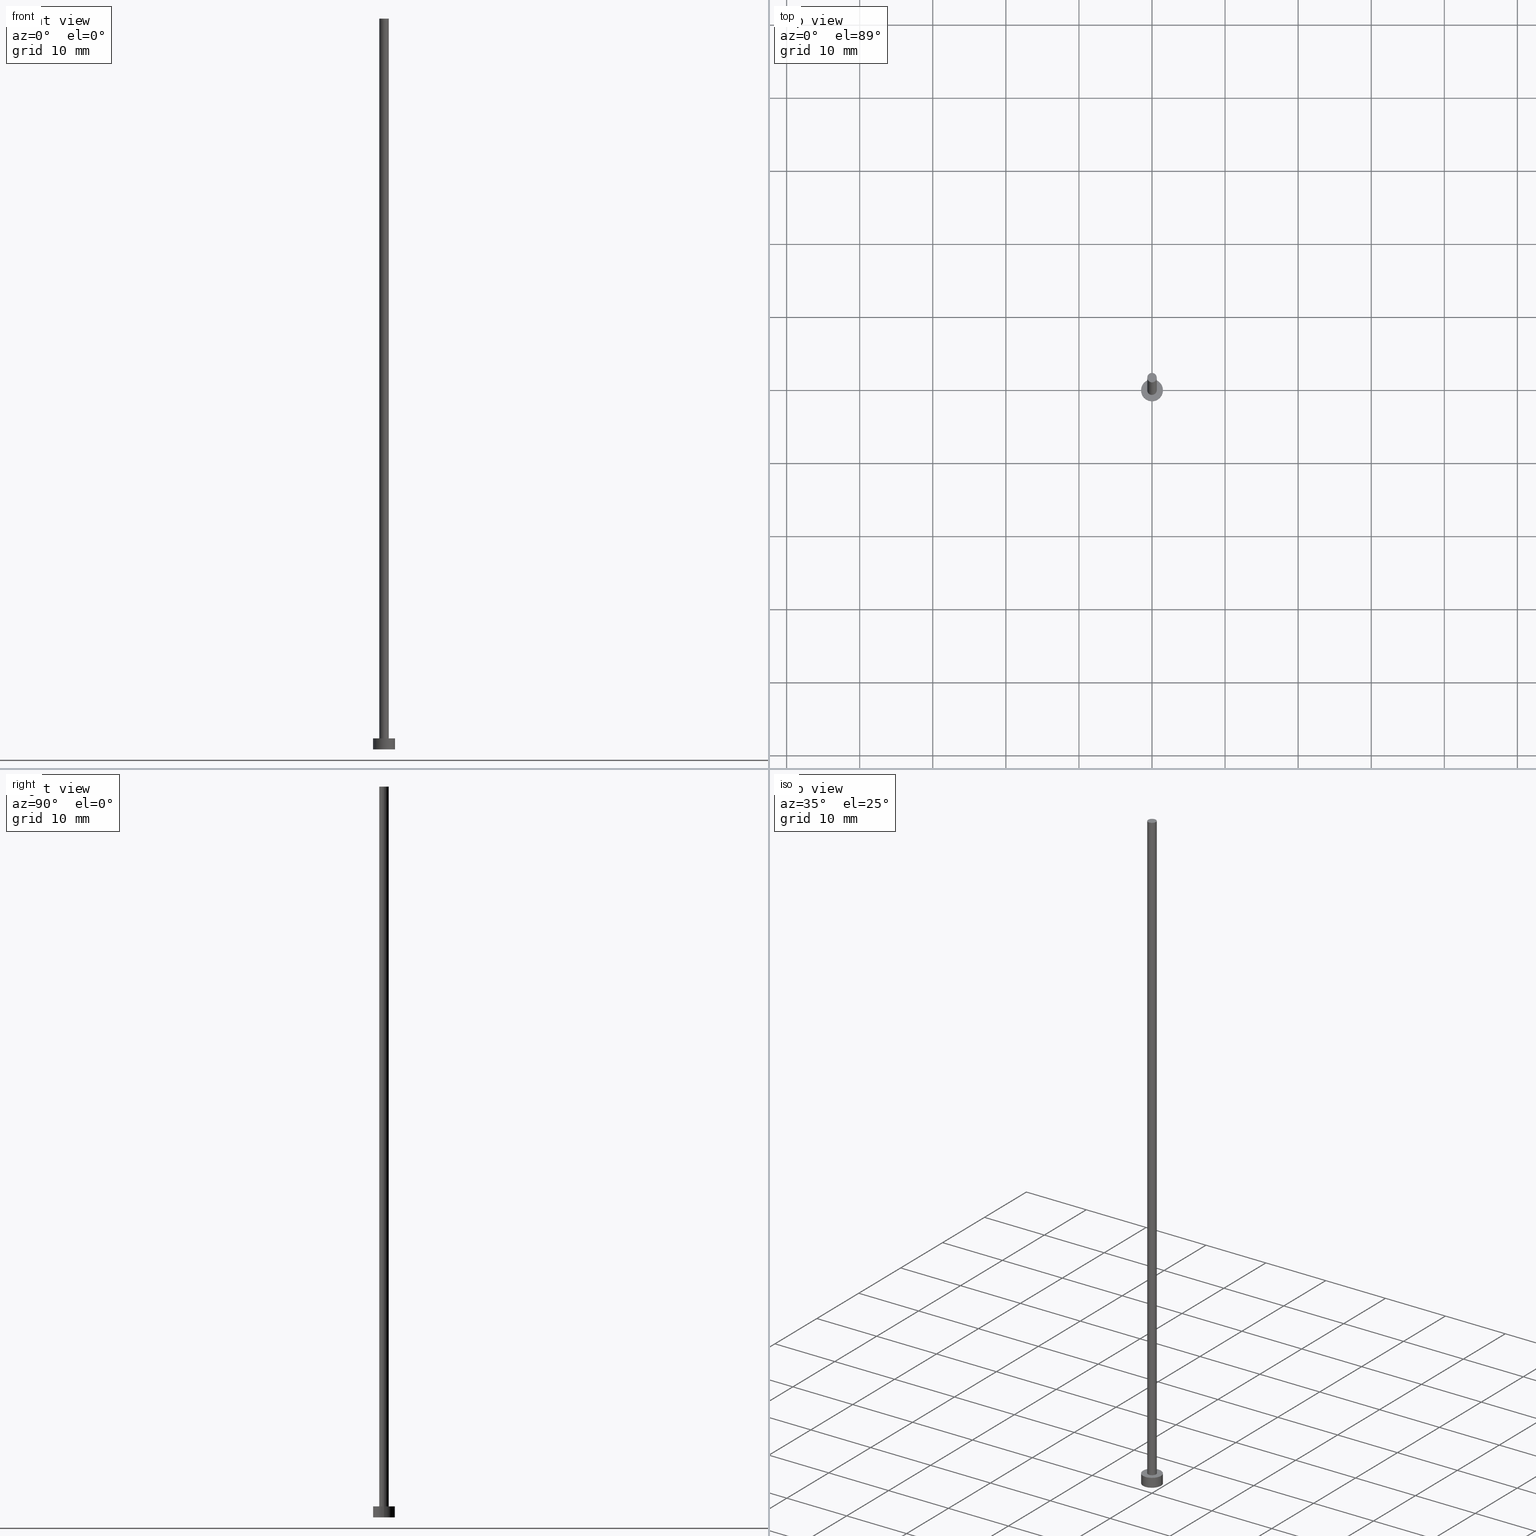
[diagram: canonical four-view strip — front | top / right | iso, engineering-drawing reading convention]
A machine part, canonical four-view strip (front | top / right | iso — engineering-drawing reading convention). The complete STEP part file that produces these views, byte-faithful:
ISO-10303-21;
HEADER;
FILE_DESCRIPTION (( 'STEP AP203' ),
    '1' );
FILE_NAME ('3cb8.STEP',
    '2023-02-12T12:58:53',
    ( '' ),
    ( '' ),
    'SwSTEP 2.0',
    'SolidWorks 2019',
    '' );
FILE_SCHEMA (( 'CONFIG_CONTROL_DESIGN' ));
ENDSEC;

DATA;
#1 = ADVANCED_FACE ( 'NONE', ( #162 ), #124, .T. ) ;
#2 = CC_DESIGN_PERSON_AND_ORGANIZATION_ASSIGNMENT ( #33, #55, ( #142 ) ) ;
#3 = DATE_AND_TIME ( #178, #199 ) ;
#4 = ORIENTED_EDGE ( 'NONE', *, *, #171, .T. ) ;
#5 = ORIENTED_EDGE ( 'NONE', *, *, #150, .T. ) ;
#6 = CIRCLE ( 'NONE', #157, 0.6500000000000000222 ) ;
#7 = ORIENTED_EDGE ( 'NONE', *, *, #171, .F. ) ;
#8 = CC_DESIGN_APPROVAL ( #48, ( #181 ) ) ;
#9 = CARTESIAN_POINT ( 'NONE',  ( 1.500000000000000222, 1.836970198721030181E-16, 1.500000000000000000 ) ) ;
#10 = EDGE_CURVE ( 'NONE', #122, #89, #102, .T. ) ;
#11 = CARTESIAN_POINT ( 'NONE',  ( 0.000000000000000000, 0.000000000000000000, 100.0000000000000000 ) ) ;
#12 = APPROVAL ( #22, 'NEUR�EN�' ) ;
#13 = CIRCLE ( 'NONE', #63, 0.6500000000000000222 ) ;
#14 = CARTESIAN_POINT ( 'NONE',  ( 0.000000000000000000, 0.000000000000000000, 100.0000000000000000 ) ) ;
#15 = DIRECTION ( 'NONE',  ( -0.000000000000000000, -0.000000000000000000, -1.000000000000000000 ) ) ;
#16 = PERSON_AND_ORGANIZATION ( #20, #179 ) ;
#17 = CARTESIAN_POINT ( 'NONE',  ( 0.000000000000000000, 0.000000000000000000, 1.500000000000000000 ) ) ;
#18 = CC_DESIGN_DATE_AND_TIME_ASSIGNMENT ( #231, #225, ( #206 ) ) ;
#19 = LOCAL_TIME ( 13, 58, 53.00000000000000000, #95 ) ;
#20 = PERSON ( 'NEUR�EN�', 'NEUR�EN�', 'NEUR�EN�', ('NEUR�EN�'), ('NEUR�EN�'), ('NEUR�EN�') ) ;
#21 = ADVANCED_FACE ( 'NONE', ( #34 ), #213, .T. ) ;
#22 = APPROVAL_STATUS ( 'not_yet_approved' ) ;
#23 = CC_DESIGN_PERSON_AND_ORGANIZATION_ASSIGNMENT ( #39, #250, ( #142 ) ) ;
#24 = AXIS2_PLACEMENT_3D ( 'NONE', #66, #45, #98 ) ;
#25 = PERSON_AND_ORGANIZATION_ROLE ( 'creator' ) ;
#26 = LOCAL_TIME ( 13, 58, 53.00000000000000000, #208 ) ;
#27 = AXIS2_PLACEMENT_3D ( 'NONE', #17, #35, #234 ) ;
#28 = VERTEX_POINT ( 'NONE', #149 ) ;
#29 = EDGE_LOOP ( 'NONE', ( #75, #241 ) ) ;
#30 = APPLICATION_CONTEXT ( 'configuration controlled 3d designs of mechanical parts and assemblies' ) ;
#31 = PERSON_AND_ORGANIZATION_ROLE ( 'classification_officer' ) ;
#32 = ORIENTED_EDGE ( 'NONE', *, *, #254, .T. ) ;
#33 = PERSON_AND_ORGANIZATION ( #20, #179 ) ;
#34 = FACE_OUTER_BOUND ( 'NONE', #180, .T. ) ;
#35 = DIRECTION ( 'NONE',  ( -0.000000000000000000, -0.000000000000000000, -1.000000000000000000 ) ) ;
#36 = DATE_AND_TIME ( #134, #88 ) ;
#37 = ADVANCED_FACE ( 'NONE', ( #114 ), #108, .T. ) ;
#38 = FACE_BOUND ( 'NONE', #29, .T. ) ;
#39 = PERSON_AND_ORGANIZATION ( #20, #179 ) ;
#40 = CARTESIAN_POINT ( 'NONE',  ( 0.000000000000000000, 0.000000000000000000, 100.0000000000000000 ) ) ;
#41 = CARTESIAN_POINT ( 'NONE',  ( 0.000000000000000000, 0.000000000000000000, 100.0000000000000000 ) ) ;
#42 = CARTESIAN_POINT ( 'NONE',  ( 0.000000000000000000, 0.000000000000000000, 1.500000000000000000 ) ) ;
#43 =( GEOMETRIC_REPRESENTATION_CONTEXT ( 3 ) GLOBAL_UNCERTAINTY_ASSIGNED_CONTEXT ( ( #147 ) ) GLOBAL_UNIT_ASSIGNED_CONTEXT ( ( #217, #153, #138 ) ) REPRESENTATION_CONTEXT ( 'NONE', 'WORKASPACE' ) );
#44 = CC_DESIGN_SECURITY_CLASSIFICATION ( #181, ( #142 ) ) ;
#45 = DIRECTION ( 'NONE',  ( 0.000000000000000000, 0.000000000000000000, 1.000000000000000000 ) ) ;
#46 = PERSON_AND_ORGANIZATION ( #20, #179 ) ;
#47 = CIRCLE ( 'NONE', #163, 0.6500000000000000222 ) ;
#48 = APPROVAL ( #126, 'NEUR�EN�' ) ;
#49 = VERTEX_POINT ( 'NONE', #230 ) ;
#50 = ORIENTED_EDGE ( 'NONE', *, *, #240, .F. ) ;
#51 = ORIENTED_EDGE ( 'NONE', *, *, #10, .T. ) ;
#52 = VECTOR ( 'NONE', #77, 1000.000000000000000 ) ;
#53 = ORIENTED_EDGE ( 'NONE', *, *, #255, .F. ) ;
#54 = DESIGN_CONTEXT ( 'detailed design', #30, 'design' ) ;
#55 = PERSON_AND_ORGANIZATION_ROLE ( 'creator' ) ;
#56 = VERTEX_POINT ( 'NONE', #132 ) ;
#57 = DIRECTION ( 'NONE',  ( 1.000000000000000000, 0.000000000000000000, -0.000000000000000000 ) ) ;
#58 = CC_DESIGN_PERSON_AND_ORGANIZATION_ASSIGNMENT ( #16, #31, ( #181 ) ) ;
#59 = PERSON_AND_ORGANIZATION ( #20, #179 ) ;
#60 = DIRECTION ( 'NONE',  ( 1.000000000000000000, 0.000000000000000000, -0.000000000000000000 ) ) ;
#61 = APPROVAL_ROLE ( '' ) ;
#62 = PLANE ( 'NONE',  #177 ) ;
#63 = AXIS2_PLACEMENT_3D ( 'NONE', #14, #93, #96 ) ;
#64 = CARTESIAN_POINT ( 'NONE',  ( 0.000000000000000000, 0.000000000000000000, 0.000000000000000000 ) ) ;
#65 = DIRECTION ( 'NONE',  ( 0.000000000000000000, 0.000000000000000000, 1.000000000000000000 ) ) ;
#66 = CARTESIAN_POINT ( 'NONE',  ( 0.000000000000000000, 0.000000000000000000, 0.000000000000000000 ) ) ;
#67 = PERSON_AND_ORGANIZATION_ROLE ( 'design_owner' ) ;
#68 = ORIENTED_EDGE ( 'NONE', *, *, #137, .T. ) ;
#69 = CLOSED_SHELL ( 'NONE', ( #1, #83, #37, #71, #236, #21, #107 ) ) ;
#70 = ORIENTED_EDGE ( 'NONE', *, *, #216, .F. ) ;
#71 = ADVANCED_FACE ( 'NONE', ( #38, #112 ), #62, .T. ) ;
#72 = EDGE_LOOP ( 'NONE', ( #50, #68, #4, #125 ) ) ;
#73 = AXIS2_PLACEMENT_3D ( 'NONE', #42, #120, #115 ) ;
#74 = ORIENTED_EDGE ( 'NONE', *, *, #139, .T. ) ;
#75 = ORIENTED_EDGE ( 'NONE', *, *, #254, .F. ) ;
#76 = DIRECTION ( 'NONE',  ( 1.000000000000000000, 0.000000000000000000, 0.000000000000000000 ) ) ;
#77 = DIRECTION ( 'NONE',  ( -0.000000000000000000, -0.000000000000000000, -1.000000000000000000 ) ) ;
#78 = SHAPE_DEFINITION_REPRESENTATION ( #195, #210 ) ;
#79 = FACE_OUTER_BOUND ( 'NONE', #72, .T. ) ;
#80 = LINE ( 'NONE', #246, #52 ) ;
#81 = APPROVAL_DATE_TIME ( #174, #48 ) ;
#82 = DIRECTION ( 'NONE',  ( -0.000000000000000000, -0.000000000000000000, -1.000000000000000000 ) ) ;
#83 = ADVANCED_FACE ( 'NONE', ( #79 ), #228, .T. ) ;
#84 = CARTESIAN_POINT ( 'NONE',  ( 0.000000000000000000, 0.000000000000000000, 1.500000000000000000 ) ) ;
#85 = VECTOR ( 'NONE', #209, 1000.000000000000000 ) ;
#86 = CARTESIAN_POINT ( 'NONE',  ( 0.000000000000000000, 0.000000000000000000, 100.0000000000000000 ) ) ;
#87 = ORIENTED_EDGE ( 'NONE', *, *, #255, .T. ) ;
#88 = LOCAL_TIME ( 13, 58, 53.00000000000000000, #129 ) ;
#89 = VERTEX_POINT ( 'NONE', #249 ) ;
#90 = CARTESIAN_POINT ( 'NONE',  ( -1.500000000000000222, 0.000000000000000000, 1.500000000000000000 ) ) ;
#91 = DATE_TIME_ROLE ( 'classification_date' ) ;
#92 = CARTESIAN_POINT ( 'NONE',  ( -0.6500000000000000222, 0.000000000000000000, 100.0000000000000000 ) ) ;
#93 = DIRECTION ( 'NONE',  ( 0.000000000000000000, 0.000000000000000000, 1.000000000000000000 ) ) ;
#94 = FACE_OUTER_BOUND ( 'NONE', #198, .T. ) ;
#95 = COORDINATED_UNIVERSAL_TIME_OFFSET ( 1, 0, .AHEAD. ) ;
#96 = DIRECTION ( 'NONE',  ( 1.000000000000000000, 0.000000000000000000, 0.000000000000000000 ) ) ;
#97 = CARTESIAN_POINT ( 'NONE',  ( -0.6500000000000000222, 0.000000000000000000, 100.0000000000000000 ) ) ;
#98 = DIRECTION ( 'NONE',  ( 1.000000000000000000, 0.000000000000000000, 0.000000000000000000 ) ) ;
#99 = APPLICATION_PROTOCOL_DEFINITION ( 'international standard', 'config_control_design', 1994, #218 ) ;
#100 = AXIS2_PLACEMENT_3D ( 'NONE', #41, #15, #229 ) ;
#101 = COORDINATED_UNIVERSAL_TIME_OFFSET ( 1, 0, .AHEAD. ) ;
#102 = CIRCLE ( 'NONE', #252, 0.6500000000000000222 ) ;
#103 = EDGE_LOOP ( 'NONE', ( #144, #53, #74, #141 ) ) ;
#104 = ORIENTED_EDGE ( 'NONE', *, *, #183, .F. ) ;
#105 = CALENDAR_DATE ( 2023, 12, 2 ) ;
#106 = DIRECTION ( 'NONE',  ( 0.000000000000000000, 0.000000000000000000, 1.000000000000000000 ) ) ;
#107 = ADVANCED_FACE ( 'NONE', ( #94 ), #151, .T. ) ;
#108 = CYLINDRICAL_SURFACE ( 'NONE', #130, 1.500000000000000222 ) ;
#109 = LOCAL_TIME ( 13, 58, 53.00000000000000000, #101 ) ;
#110 = APPROVAL_STATUS ( 'not_yet_approved' ) ;
#111 = CC_DESIGN_PERSON_AND_ORGANIZATION_ASSIGNMENT ( #46, #67, ( #242 ) ) ;
#112 = FACE_OUTER_BOUND ( 'NONE', #243, .T. ) ;
#113 = APPROVAL_DATE_TIME ( #36, #156 ) ;
#114 = FACE_OUTER_BOUND ( 'NONE', #103, .T. ) ;
#115 = DIRECTION ( 'NONE',  ( 1.000000000000000000, 0.000000000000000000, 0.000000000000000000 ) ) ;
#116 = APPROVAL_PERSON_ORGANIZATION ( #247, #48, #148 ) ;
#117 = CARTESIAN_POINT ( 'NONE',  ( 0.000000000000000000, 0.000000000000000000, 1.500000000000000000 ) ) ;
#118 = APPLICATION_PROTOCOL_DEFINITION ( 'international standard', 'config_control_design', 1994, #30 ) ;
#119 = CC_DESIGN_APPROVAL ( #156, ( #142 ) ) ;
#120 = DIRECTION ( 'NONE',  ( 0.000000000000000000, 0.000000000000000000, 1.000000000000000000 ) ) ;
#121 = EDGE_CURVE ( 'NONE', #244, #89, #128, .T. ) ;
#122 = VERTEX_POINT ( 'NONE', #175 ) ;
#123 = VERTEX_POINT ( 'NONE', #185 ) ;
#124 = CYLINDRICAL_SURFACE ( 'NONE', #215, 0.6500000000000000222 ) ;
#125 = ORIENTED_EDGE ( 'NONE', *, *, #139, .F. ) ;
#126 = APPROVAL_STATUS ( 'not_yet_approved' ) ;
#127 = ORIENTED_EDGE ( 'NONE', *, *, #240, .T. ) ;
#128 = LINE ( 'NONE', #92, #172 ) ;
#129 = COORDINATED_UNIVERSAL_TIME_OFFSET ( 1, 0, .AHEAD. ) ;
#130 = AXIS2_PLACEMENT_3D ( 'NONE', #232, #82, #207 ) ;
#131 = DIRECTION ( 'NONE',  ( 1.000000000000000000, 0.000000000000000000, 0.000000000000000000 ) ) ;
#132 = CARTESIAN_POINT ( 'NONE',  ( 1.500000000000000222, 1.836970198721030181E-16, 0.000000000000000000 ) ) ;
#133 = APPROVAL_PERSON_ORGANIZATION ( #59, #156, #61 ) ;
#134 = CALENDAR_DATE ( 2023, 12, 2 ) ;
#135 = DIRECTION ( 'NONE',  ( 0.000000000000000000, 0.000000000000000000, 1.000000000000000000 ) ) ;
#136 = DIRECTION ( 'NONE',  ( 1.000000000000000000, 0.000000000000000000, -0.000000000000000000 ) ) ;
#137 = EDGE_CURVE ( 'NONE', #123, #56, #211, .T. ) ;
#138 =( NAMED_UNIT ( * ) SI_UNIT ( $, .STERADIAN. ) SOLID_ANGLE_UNIT ( ) );
#139 = EDGE_CURVE ( 'NONE', #49, #28, #173, .T. ) ;
#140 = ORIENTED_EDGE ( 'NONE', *, *, #216, .T. ) ;
#141 = ORIENTED_EDGE ( 'NONE', *, *, #161, .T. ) ;
#142 = PRODUCT_DEFINITION_FORMATION_WITH_SPECIFIED_SOURCE ( 'LIBOVOLN�', '', #242, .NOT_KNOWN. ) ;
#143 = COORDINATED_UNIVERSAL_TIME_OFFSET ( 1, 0, .AHEAD. ) ;
#144 = ORIENTED_EDGE ( 'NONE', *, *, #137, .F. ) ;
#145 = DIRECTION ( 'NONE',  ( -1.000000000000000000, 0.000000000000000000, 0.000000000000000000 ) ) ;
#146 = CARTESIAN_POINT ( 'NONE',  ( 0.6500000000000000222, 7.960204194457795477E-17, 100.0000000000000000 ) ) ;
#147 = UNCERTAINTY_MEASURE_WITH_UNIT (LENGTH_MEASURE( 1.000000000000000082E-05 ), #217, 'distance_accuracy_value', 'NONE');
#148 = APPROVAL_ROLE ( '' ) ;
#149 = CARTESIAN_POINT ( 'NONE',  ( -1.500000000000000222, 0.000000000000000000, 0.000000000000000000 ) ) ;
#150 = EDGE_CURVE ( 'NONE', #219, #122, #80, .T. ) ;
#151 = PLANE ( 'NONE',  #159 ) ;
#152 = DIRECTION ( 'NONE',  ( 0.000000000000000000, 0.000000000000000000, 1.000000000000000000 ) ) ;
#153 =( NAMED_UNIT ( * ) PLANE_ANGLE_UNIT ( ) SI_UNIT ( $, .RADIAN. ) );
#154 = AXIS2_PLACEMENT_3D ( 'NONE', #251, #65, #136 ) ;
#155 = DIRECTION ( 'NONE',  ( 0.000000000000000000, 0.000000000000000000, 1.000000000000000000 ) ) ;
#156 = APPROVAL ( #110, 'NEUR�EN�' ) ;
#157 = AXIS2_PLACEMENT_3D ( 'NONE', #40, #188, #76 ) ;
#158 = DIRECTION ( 'NONE',  ( 0.000000000000000000, 0.000000000000000000, 1.000000000000000000 ) ) ;
#159 = AXIS2_PLACEMENT_3D ( 'NONE', #11, #165, #57 ) ;
#160 = ORIENTED_EDGE ( 'NONE', *, *, #183, .T. ) ;
#161 = EDGE_CURVE ( 'NONE', #28, #56, #190, .T. ) ;
#162 = FACE_OUTER_BOUND ( 'NONE', #224, .T. ) ;
#163 = AXIS2_PLACEMENT_3D ( 'NONE', #117, #253, #196 ) ;
#164 = ORIENTED_EDGE ( 'NONE', *, *, #150, .F. ) ;
#165 = DIRECTION ( 'NONE',  ( 0.000000000000000000, 0.000000000000000000, 1.000000000000000000 ) ) ;
#166 = DIRECTION ( 'NONE',  ( -0.000000000000000000, -0.000000000000000000, -1.000000000000000000 ) ) ;
#167 = MANIFOLD_SOLID_BREP ( 'P�idat vysunut�m3', #69 ) ;
#168 = APPROVAL_PERSON_ORGANIZATION ( #194, #12, #238 ) ;
#169 = DATE_AND_TIME ( #105, #19 ) ;
#170 = FACE_OUTER_BOUND ( 'NONE', #239, .T. ) ;
#171 = EDGE_CURVE ( 'NONE', #56, #28, #214, .T. ) ;
#172 = VECTOR ( 'NONE', #166, 1000.000000000000000 ) ;
#173 = LINE ( 'NONE', #90, #202 ) ;
#174 = DATE_AND_TIME ( #204, #26 ) ;
#175 = CARTESIAN_POINT ( 'NONE',  ( 0.6500000000000000222, 7.960204194457795477E-17, 1.500000000000000000 ) ) ;
#176 = CIRCLE ( 'NONE', #73, 1.500000000000000222 ) ;
#177 = AXIS2_PLACEMENT_3D ( 'NONE', #189, #152, #60 ) ;
#178 = CALENDAR_DATE ( 2023, 12, 2 ) ;
#179 = ORGANIZATION ( 'NEUR�EN�', 'NEUR�EN�', '' ) ;
#180 = EDGE_LOOP ( 'NONE', ( #164, #104, #221, #32 ) ) ;
#181 = SECURITY_CLASSIFICATION ( '', '', #187 ) ;
#182 = CALENDAR_DATE ( 2023, 12, 2 ) ;
#183 = EDGE_CURVE ( 'NONE', #244, #219, #6, .T. ) ;
#184 = PRODUCT_RELATED_PRODUCT_CATEGORY ( 'detail', '', ( #242 ) ) ;
#185 = CARTESIAN_POINT ( 'NONE',  ( 1.500000000000000222, 1.836970198721030181E-16, 1.500000000000000000 ) ) ;
#186 = DIRECTION ( 'NONE',  ( 1.000000000000000000, 0.000000000000000000, 0.000000000000000000 ) ) ;
#187 = SECURITY_CLASSIFICATION_LEVEL ( 'unclassified' ) ;
#188 = DIRECTION ( 'NONE',  ( 0.000000000000000000, 0.000000000000000000, 1.000000000000000000 ) ) ;
#189 = CARTESIAN_POINT ( 'NONE',  ( 0.000000000000000000, 0.000000000000000000, 1.500000000000000000 ) ) ;
#190 = CIRCLE ( 'NONE', #212, 1.500000000000000222 ) ;
#191 = CARTESIAN_POINT ( 'NONE',  ( 0.000000000000000000, 0.000000000000000000, 0.000000000000000000 ) ) ;
#192 = CC_DESIGN_DATE_AND_TIME_ASSIGNMENT ( #169, #91, ( #181 ) ) ;
#193 = MECHANICAL_CONTEXT ( 'NONE', #218, 'mechanical' ) ;
#194 = PERSON_AND_ORGANIZATION ( #20, #179 ) ;
#195 = PRODUCT_DEFINITION_SHAPE ( 'NONE', 'NONE',  #206 ) ;
#196 = DIRECTION ( 'NONE',  ( 1.000000000000000000, 0.000000000000000000, 0.000000000000000000 ) ) ;
#197 = CC_DESIGN_PERSON_AND_ORGANIZATION_ASSIGNMENT ( #220, #25, ( #206 ) ) ;
#198 = EDGE_LOOP ( 'NONE', ( #160, #140 ) ) ;
#199 = LOCAL_TIME ( 13, 58, 53.00000000000000000, #143 ) ;
#200 = APPROVAL_DATE_TIME ( #3, #12 ) ;
#201 = DIRECTION ( 'NONE',  ( -0.000000000000000000, -0.000000000000000000, -1.000000000000000000 ) ) ;
#202 = VECTOR ( 'NONE', #245, 1000.000000000000000 ) ;
#203 = ORIENTED_EDGE ( 'NONE', *, *, #161, .F. ) ;
#204 = CALENDAR_DATE ( 2023, 12, 2 ) ;
#205 = DIRECTION ( 'NONE',  ( 1.000000000000000000, 0.000000000000000000, 0.000000000000000000 ) ) ;
#206 = PRODUCT_DEFINITION ( 'NEZN�M�', '', #142, #54 ) ;
#207 = DIRECTION ( 'NONE',  ( -1.000000000000000000, 0.000000000000000000, 0.000000000000000000 ) ) ;
#208 = COORDINATED_UNIVERSAL_TIME_OFFSET ( 1, 0, .AHEAD. ) ;
#209 = DIRECTION ( 'NONE',  ( -0.000000000000000000, -0.000000000000000000, -1.000000000000000000 ) ) ;
#210 = ADVANCED_BREP_SHAPE_REPRESENTATION ( '3cb8', ( #167, #24 ), #43 ) ;
#211 = LINE ( 'NONE', #9, #85 ) ;
#212 = AXIS2_PLACEMENT_3D ( 'NONE', #64, #106, #186 ) ;
#213 = CYLINDRICAL_SURFACE ( 'NONE', #100, 0.6500000000000000222 ) ;
#214 = CIRCLE ( 'NONE', #237, 1.500000000000000222 ) ;
#215 = AXIS2_PLACEMENT_3D ( 'NONE', #86, #201, #145 ) ;
#216 = EDGE_CURVE ( 'NONE', #219, #244, #13, .T. ) ;
#217 =( LENGTH_UNIT ( ) NAMED_UNIT ( * ) SI_UNIT ( .MILLI., .METRE. ) );
#218 = APPLICATION_CONTEXT ( 'configuration controlled 3d designs of mechanical parts and assemblies' ) ;
#219 = VERTEX_POINT ( 'NONE', #146 ) ;
#220 = PERSON_AND_ORGANIZATION ( #20, #179 ) ;
#221 = ORIENTED_EDGE ( 'NONE', *, *, #121, .T. ) ;
#222 = CC_DESIGN_APPROVAL ( #12, ( #206 ) ) ;
#223 = ORIENTED_EDGE ( 'NONE', *, *, #121, .F. ) ;
#224 = EDGE_LOOP ( 'NONE', ( #70, #5, #51, #223 ) ) ;
#225 = DATE_TIME_ROLE ( 'creation_date' ) ;
#226 = CARTESIAN_POINT ( 'NONE',  ( 0.000000000000000000, 0.000000000000000000, 1.500000000000000000 ) ) ;
#227 = CIRCLE ( 'NONE', #233, 1.500000000000000222 ) ;
#228 = CYLINDRICAL_SURFACE ( 'NONE', #27, 1.500000000000000222 ) ;
#229 = DIRECTION ( 'NONE',  ( -1.000000000000000000, 0.000000000000000000, 0.000000000000000000 ) ) ;
#230 = CARTESIAN_POINT ( 'NONE',  ( -1.500000000000000222, 0.000000000000000000, 1.500000000000000000 ) ) ;
#231 = DATE_AND_TIME ( #182, #109 ) ;
#232 = CARTESIAN_POINT ( 'NONE',  ( 0.000000000000000000, 0.000000000000000000, 1.500000000000000000 ) ) ;
#233 = AXIS2_PLACEMENT_3D ( 'NONE', #84, #155, #235 ) ;
#234 = DIRECTION ( 'NONE',  ( -1.000000000000000000, 0.000000000000000000, 0.000000000000000000 ) ) ;
#235 = DIRECTION ( 'NONE',  ( 1.000000000000000000, 0.000000000000000000, 0.000000000000000000 ) ) ;
#236 = ADVANCED_FACE ( 'NONE', ( #170 ), #248, .F. ) ;
#237 = AXIS2_PLACEMENT_3D ( 'NONE', #191, #135, #131 ) ;
#238 = APPROVAL_ROLE ( '' ) ;
#239 = EDGE_LOOP ( 'NONE', ( #203, #7 ) ) ;
#240 = EDGE_CURVE ( 'NONE', #123, #49, #176, .T. ) ;
#241 = ORIENTED_EDGE ( 'NONE', *, *, #10, .F. ) ;
#242 = PRODUCT ( '3cb8', '3cb8', '', ( #193 ) ) ;
#243 = EDGE_LOOP ( 'NONE', ( #87, #127 ) ) ;
#244 = VERTEX_POINT ( 'NONE', #97 ) ;
#245 = DIRECTION ( 'NONE',  ( -0.000000000000000000, -0.000000000000000000, -1.000000000000000000 ) ) ;
#246 = CARTESIAN_POINT ( 'NONE',  ( 0.6500000000000000222, 7.960204194457795477E-17, 100.0000000000000000 ) ) ;
#247 = PERSON_AND_ORGANIZATION ( #20, #179 ) ;
#248 = PLANE ( 'NONE',  #154 ) ;
#249 = CARTESIAN_POINT ( 'NONE',  ( -0.6500000000000000222, 0.000000000000000000, 1.500000000000000000 ) ) ;
#250 = PERSON_AND_ORGANIZATION_ROLE ( 'design_supplier' ) ;
#251 = CARTESIAN_POINT ( 'NONE',  ( 0.000000000000000000, 0.000000000000000000, 0.000000000000000000 ) ) ;
#252 = AXIS2_PLACEMENT_3D ( 'NONE', #226, #158, #205 ) ;
#253 = DIRECTION ( 'NONE',  ( 0.000000000000000000, 0.000000000000000000, 1.000000000000000000 ) ) ;
#254 = EDGE_CURVE ( 'NONE', #89, #122, #47, .T. ) ;
#255 = EDGE_CURVE ( 'NONE', #49, #123, #227, .T. ) ;
ENDSEC;
END-ISO-10303-21;
